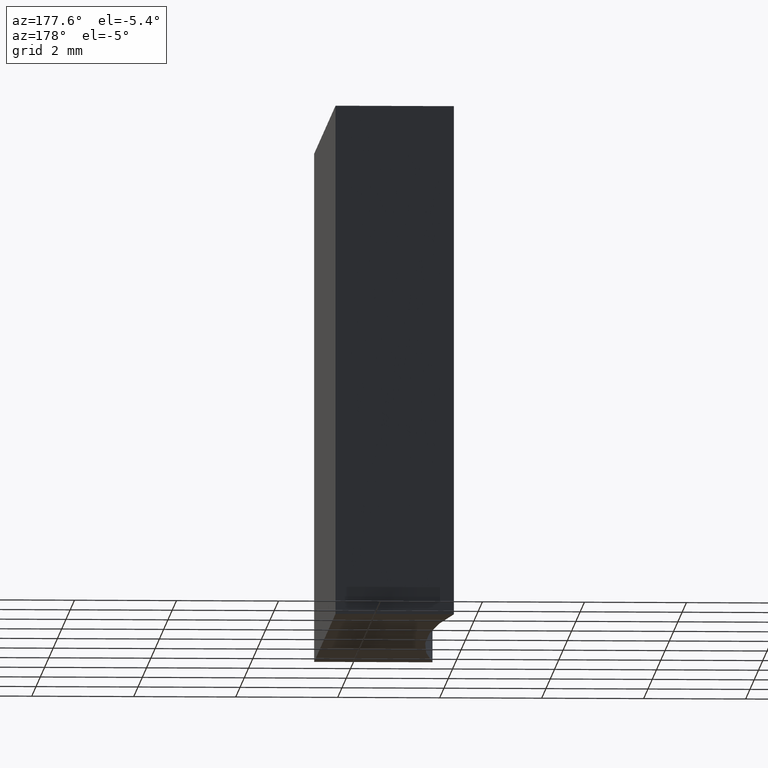
[diagram: clean part render]
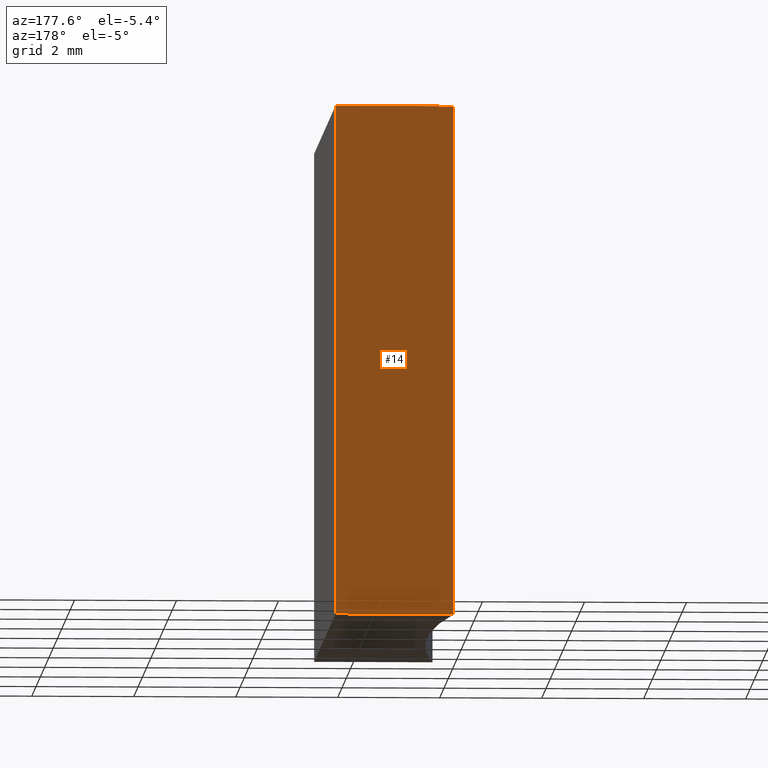
[diagram: same view with one face highlighted and labeled with its STEP entity id]
A machine part, auxiliary view. The second image highlights one B-rep face of the part: STEP entity #14.
In plain terms, the highlighted planar face has unit normal (0, -1, 0).
Its self-contained STEP definition (entity closure, byte-faithful):
#14 = ADVANCED_FACE ( 'NONE', ( #110 ), #186, .F. ) ;
#15 = AXIS2_PLACEMENT_3D ( 'NONE', #188, #201, #25 ) ;
#25 = DIRECTION ( 'NONE',  ( 0.000000000000000000, -0.000000000000000000, -1.000000000000000000 ) ) ;
#26 = CARTESIAN_POINT ( 'NONE',  ( 12.35556705474980710, -0.8958416501315611402, 0.000000000000000000 ) ) ;
#28 = CARTESIAN_POINT ( 'NONE',  ( 14.67556705474980561, -0.8958416501315611402, 10.00000000000000000 ) ) ;
#41 = CARTESIAN_POINT ( 'NONE',  ( 12.35556705474980710, -0.8958416501315611402, 10.00000000000000000 ) ) ;
#44 = LINE ( 'NONE', #28, #136 ) ;
#51 = VECTOR ( 'NONE', #88, 1000.000000000000000 ) ;
#61 = DIRECTION ( 'NONE',  ( -0.000000000000000000, -0.000000000000000000, -1.000000000000000000 ) ) ;
#75 = EDGE_CURVE ( 'NONE', #79, #180, #89, .T. ) ;
#79 = VERTEX_POINT ( 'NONE', #237 ) ;
#82 = LINE ( 'NONE', #226, #209 ) ;
#88 = DIRECTION ( 'NONE',  ( -1.000000000000000000, -0.000000000000000000, -0.000000000000000000 ) ) ;
#89 = LINE ( 'NONE', #167, #51 ) ;
#97 = CARTESIAN_POINT ( 'NONE',  ( 12.35556705474980710, -0.8958416501315611402, 10.00000000000000000 ) ) ;
#102 = EDGE_CURVE ( 'NONE', #165, #180, #220, .T. ) ;
#108 = VERTEX_POINT ( 'NONE', #147 ) ;
#110 = FACE_OUTER_BOUND ( 'NONE', #235, .T. ) ;
#115 = DIRECTION ( 'NONE',  ( -0.000000000000000000, -0.000000000000000000, -1.000000000000000000 ) ) ;
#132 = DIRECTION ( 'NONE',  ( -1.000000000000000000, -0.000000000000000000, -0.000000000000000000 ) ) ;
#136 = VECTOR ( 'NONE', #115, 1000.000000000000000 ) ;
#147 = CARTESIAN_POINT ( 'NONE',  ( 14.67556705474980561, -0.8958416501315611402, 10.00000000000000000 ) ) ;
#165 = VERTEX_POINT ( 'NONE', #97 ) ;
#167 = CARTESIAN_POINT ( 'NONE',  ( 12.35556705474980710, -0.8958416501315611402, 0.000000000000000000 ) ) ;
#180 = VERTEX_POINT ( 'NONE', #26 ) ;
#183 = VECTOR ( 'NONE', #61, 1000.000000000000000 ) ;
#186 = PLANE ( 'NONE',  #15 ) ;
#187 = ORIENTED_EDGE ( 'NONE', *, *, #75, .T. ) ;
#188 = CARTESIAN_POINT ( 'NONE',  ( 12.35556705474980710, -0.8958416501315611402, 10.00000000000000000 ) ) ;
#201 = DIRECTION ( 'NONE',  ( 0.000000000000000000, -1.000000000000000000, 0.000000000000000000 ) ) ;
#206 = EDGE_CURVE ( 'NONE', #108, #165, #82, .T. ) ;
#209 = VECTOR ( 'NONE', #132, 1000.000000000000000 ) ;
#215 = ORIENTED_EDGE ( 'NONE', *, *, #223, .T. ) ;
#220 = LINE ( 'NONE', #41, #183 ) ;
#223 = EDGE_CURVE ( 'NONE', #108, #79, #44, .T. ) ;
#226 = CARTESIAN_POINT ( 'NONE',  ( 12.35556705474980710, -0.8958416501315611402, 10.00000000000000000 ) ) ;
#231 = ORIENTED_EDGE ( 'NONE', *, *, #102, .F. ) ;
#235 = EDGE_LOOP ( 'NONE', ( #187, #231, #238, #215 ) ) ;
#237 = CARTESIAN_POINT ( 'NONE',  ( 14.67556705474980561, -0.8958416501315611402, 0.000000000000000000 ) ) ;
#238 = ORIENTED_EDGE ( 'NONE', *, *, #206, .F. ) ;